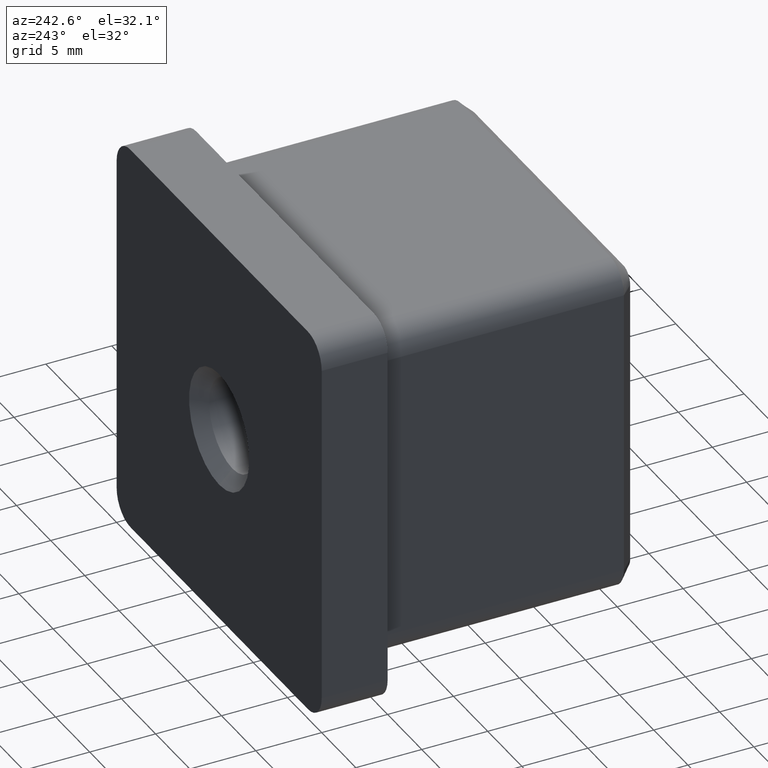
[diagram: clean part render]
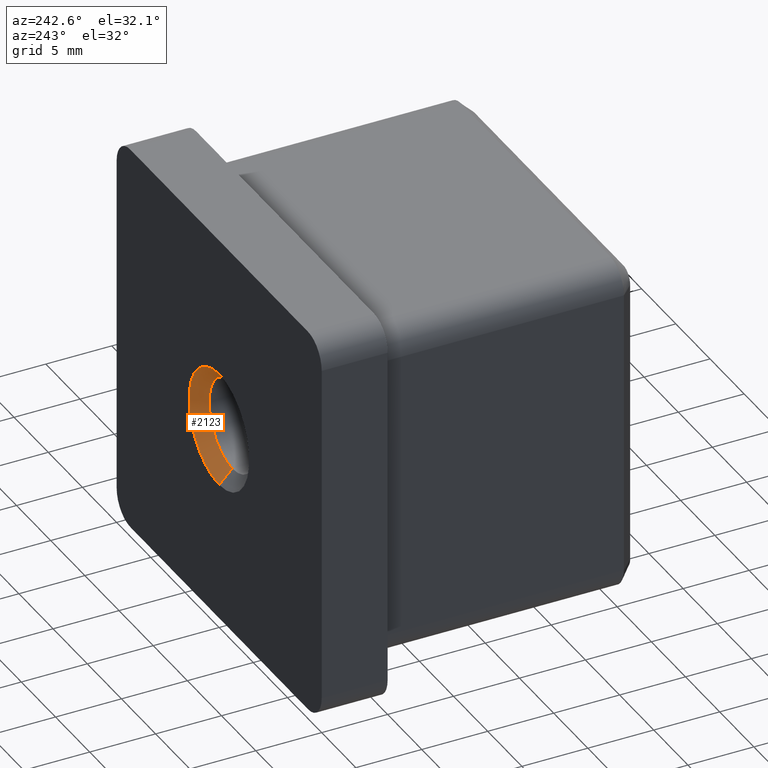
[diagram: same view with one face highlighted and labeled with its STEP entity id]
A machine part, auxiliary view. The second image highlights one B-rep face of the part: STEP entity #2123.
In plain terms, the highlighted conical surface has half-angle 45 deg.
Its self-contained STEP definition (entity closure, byte-faithful):
#480 = CARTESIAN_POINT ( 'NONE',  ( 6.613092715395703500E-016, 3.999999999999994700, 3.399999999999996400 ) ) ;
#1318 = DIRECTION ( 'NONE',  ( 8.659560562354897100E-017, 0.7071067811865504600, -0.7071067811865445800 ) ) ;
#1811 = CARTESIAN_POINT ( 'NONE',  ( 2.449293598294707400E-016, 5.000000000000000900, 0.0000000000000000000 ) ) ;
#1947 = DIRECTION ( 'NONE',  ( -0.0000000000000000000, -1.000000000000000000, -0.0000000000000000000 ) ) ;
#2123 = ADVANCED_FACE ( 'NONE', ( #5503 ), #14007, .F. ) ;
#2141 = CIRCLE ( 'NONE', #16384, 4.399999999999993200 ) ;
#2667 = ORIENTED_EDGE ( 'NONE', *, *, #12458, .F. ) ;
#2748 = DIRECTION ( 'NONE',  ( 0.0000000000000000000, 0.7071067811865504600, 0.7071067811865445800 ) ) ;
#3922 = VERTEX_POINT ( 'NONE', #480 ) ;
#4682 = EDGE_CURVE ( 'NONE', #3922, #5247, #5810, .T. ) ;
#5247 = VERTEX_POINT ( 'NONE', #17999 ) ;
#5503 = FACE_OUTER_BOUND ( 'NONE', #18234, .T. ) ;
#5810 = CIRCLE ( 'NONE', #12075, 3.399999999999996400 ) ;
#5985 = LINE ( 'NONE', #9790, #11313 ) ;
#6145 = DIRECTION ( 'NONE',  ( -0.0000000000000000000, 1.000000000000000000, -0.0000000000000000000 ) ) ;
#6276 = DIRECTION ( 'NONE',  ( 0.0000000000000000000, 0.0000000000000000000, 1.000000000000000000 ) ) ;
#7472 = ORIENTED_EDGE ( 'NONE', *, *, #4682, .F. ) ;
#8525 = CARTESIAN_POINT ( 'NONE',  ( 7.837739514543055000E-016, 5.000000000000000000, -4.399999999999993200 ) ) ;
#9735 = CARTESIAN_POINT ( 'NONE',  ( 7.837739514543055000E-016, 5.000000000000000900, -4.399999999999994100 ) ) ;
#9790 = CARTESIAN_POINT ( 'NONE',  ( 2.449293598294707400E-016, 5.000000000000000900, 4.399999999999994100 ) ) ;
#10348 = VERTEX_POINT ( 'NONE', #8525 ) ;
#10566 = VECTOR ( 'NONE', #1318, 1000.000000000000000 ) ;
#10840 = ORIENTED_EDGE ( 'NONE', *, *, #17752, .F. ) ;
#10885 = DIRECTION ( 'NONE',  ( 0.0000000000000000000, 0.0000000000000000000, 1.000000000000000000 ) ) ;
#11313 = VECTOR ( 'NONE', #2748, 1000.000000000000000 ) ;
#11657 = AXIS2_PLACEMENT_3D ( 'NONE', #1811, #6145, #6276 ) ;
#12075 = AXIS2_PLACEMENT_3D ( 'NONE', #17863, #13717, #10885 ) ;
#12458 = EDGE_CURVE ( 'NONE', #10348, #13306, #2141, .T. ) ;
#12889 = EDGE_CURVE ( 'NONE', #3922, #13306, #5985, .T. ) ;
#13253 = DIRECTION ( 'NONE',  ( 0.0000000000000000000, 0.0000000000000000000, 1.000000000000000000 ) ) ;
#13306 = VERTEX_POINT ( 'NONE', #16762 ) ;
#13717 = DIRECTION ( 'NONE',  ( -0.0000000000000000000, 1.000000000000000000, -0.0000000000000000000 ) ) ;
#13737 = ORIENTED_EDGE ( 'NONE', *, *, #12889, .T. ) ;
#14007 = CONICAL_SURFACE ( 'NONE', #11657, 4.399999999999994100, 0.7853981633974441700 ) ;
#14355 = LINE ( 'NONE', #9735, #10566 ) ;
#14663 = CARTESIAN_POINT ( 'NONE',  ( 2.449293598294707400E-016, 5.000000000000000000, 0.0000000000000000000 ) ) ;
#16384 = AXIS2_PLACEMENT_3D ( 'NONE', #14663, #1947, #13253 ) ;
#16762 = CARTESIAN_POINT ( 'NONE',  ( 2.449293598294707400E-016, 5.000000000000000000, 4.399999999999993200 ) ) ;
#17752 = EDGE_CURVE ( 'NONE', #5247, #10348, #14355, .T. ) ;
#17863 = CARTESIAN_POINT ( 'NONE',  ( 2.449293598294707400E-016, 3.999999999999994700, 0.0000000000000000000 ) ) ;
#17999 = CARTESIAN_POINT ( 'NONE',  ( 2.449293598294707400E-016, 3.999999999999994700, -3.399999999999996400 ) ) ;
#18234 = EDGE_LOOP ( 'NONE', ( #10840, #7472, #13737, #2667 ) ) ;